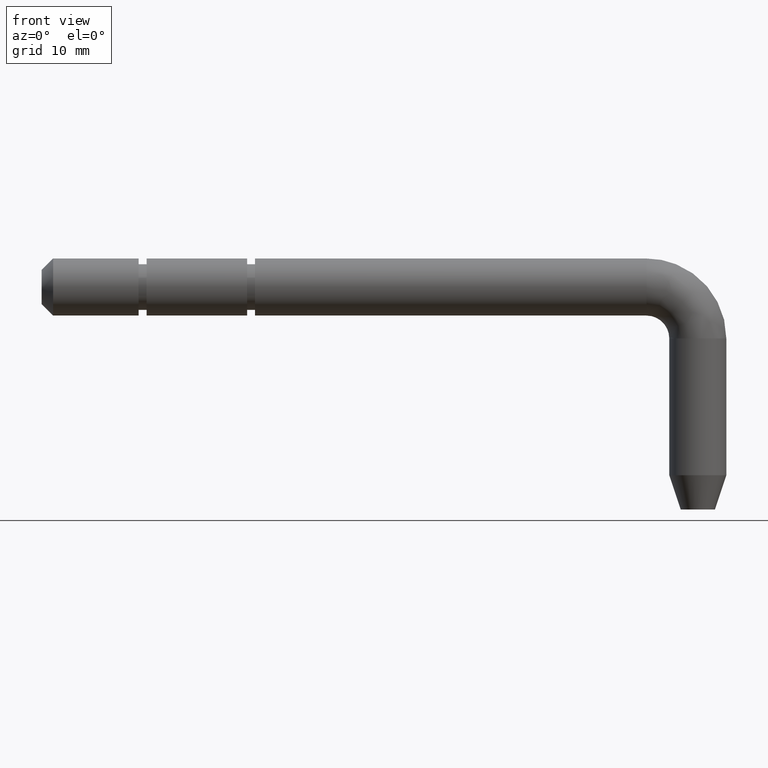
[diagram: clean part render]
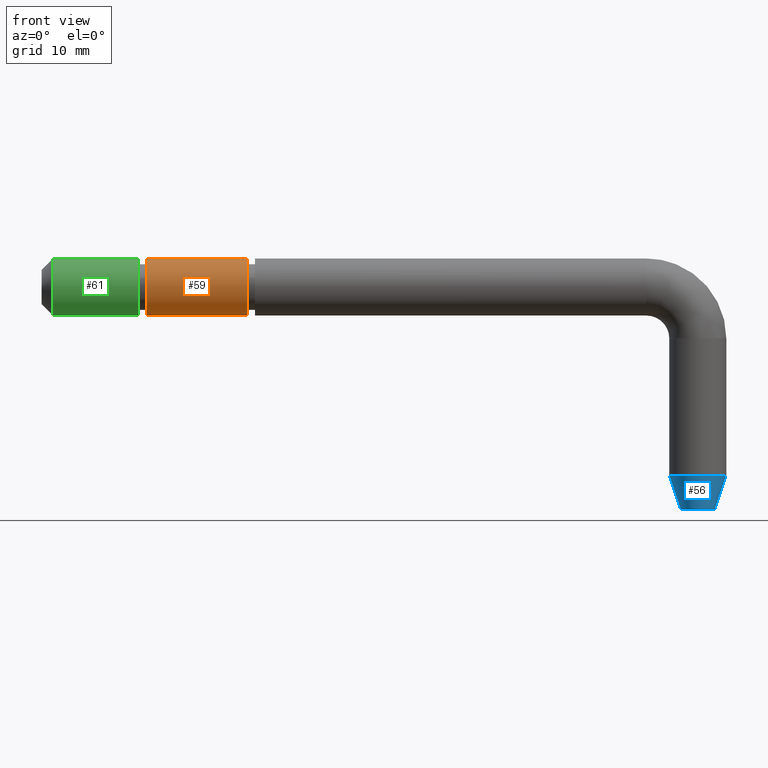
[diagram: same view with three faces highlighted in distinct colors, each labeled with its STEP entity id]
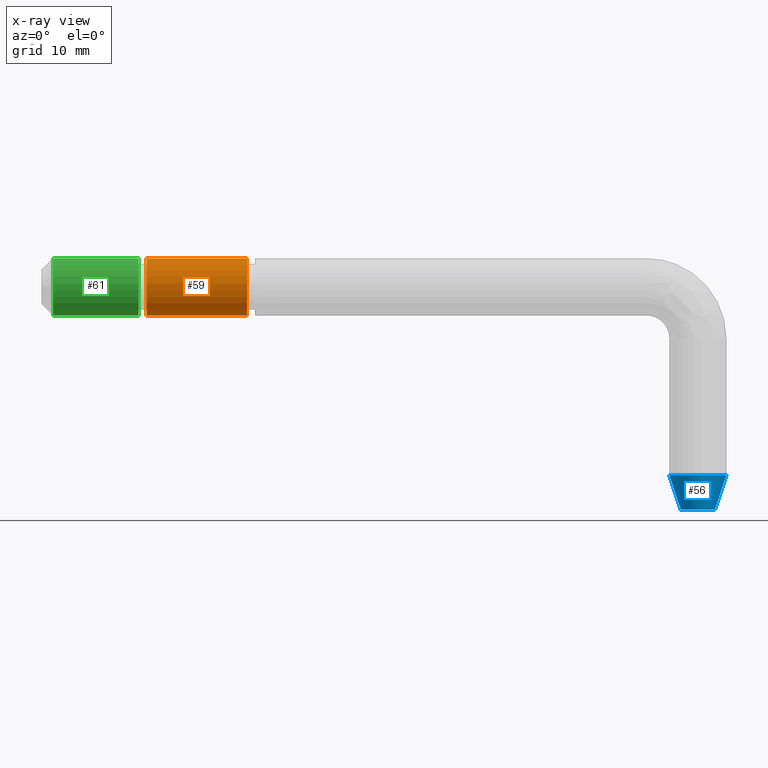
[diagram: x-ray of the same camera — body ghosted, the three highlighted faces saturated]
A machine part, front view with three faces highlighted in distinct colors.
The next image is the same camera in x-ray (body ghosted, the three faces saturated) — at least one of them is partly hidden behind the body in this view.
Their STEP definitions:

[orange] entity #59 — the highlighted cylindrical surface (edge-blend (fillet) strip) has radius 2.5 mm, axis along (1, 0, 0).
#59=ADVANCED_FACE('',(#259),#258,.T.);
#258=CYLINDRICAL_SURFACE('',#470,2.50000000000E+00);
#259=FACE_OUTER_BOUND('',#471,.T.);
#467=CARTESIAN_POINT('',(1.88800000000E+01,1.47949495899E-15,8.12194396524E-32));
#468=DIRECTION('',(1.00000000000E+00,2.51214793389E-16,1.53824696311E-32));
#469=DIRECTION('',(-1.33285938546E-31,5.91797983596E-16,-1.00000000000E+00));
#470=AXIS2_PLACEMENT_3D('',#467,#468,#469);
#471=EDGE_LOOP('',(#576,#577,#578,#579));
#576=ORIENTED_EDGE('',*,*,#617,.F.);
#577=ORIENTED_EDGE('',*,*,#634,.T.);
#578=ORIENTED_EDGE('',*,*,#605,.T.);
#579=ORIENTED_EDGE('',*,*,#635,.F.);
#605=EDGE_CURVE('',#699,#698,#706,.T.);
#617=EDGE_CURVE('',#783,#782,#790,.T.);
#634=EDGE_CURVE('',#783,#699,#896,.T.);
#635=EDGE_CURVE('',#782,#698,#902,.T.);
#698=VERTEX_POINT('',#987);
#699=VERTEX_POINT('',#988);
#706=CIRCLE('',#996,2.50000000000E+00);
#782=VERTEX_POINT('',#1047);
#783=VERTEX_POINT('',#1048);
#790=CIRCLE('',#1056,2.50000000000E+00);
#896=(BOUNDED_CURVE() B_SPLINE_CURVE(1,(#1105,#1106),.UNSPECIFIED.,.F.,.F.) B_SPLINE_CURVE_WITH_KNOTS((2,2),(8.33333343261E-02,9.16666664274E-01),.UNSPECIFIED.) CURVE() GEOMETRIC_REPRESENTATION_ITEM() RATIONAL_B_SPLINE_CURVE((1.00000000000E+00,1.00000000000E+00)) REPRESENTATION_ITEM('') );
#902=(BOUNDED_CURVE() B_SPLINE_CURVE(1,(#1107,#1108),.UNSPECIFIED.,.F.,.F.) B_SPLINE_CURVE_WITH_KNOTS((2,2),(8.33333333333E-02,9.16666666667E-01),.UNSPECIFIED.) CURVE() GEOMETRIC_REPRESENTATION_ITEM() RATIONAL_B_SPLINE_CURVE((7.50000000000E-01,7.50000000000E-01)) REPRESENTATION_ITEM('') );
#987=CARTESIAN_POINT('',(1.80000000000E+01,0.00000000000E+00,2.50000000000E+00));
#988=CARTESIAN_POINT('',(1.80000000000E+01,7.60343024859E-16,-2.50000000000E+00));
#993=CARTESIAN_POINT('',(1.80000000000E+01,1.53080849893E-16,0.00000000000E+00));
#994=DIRECTION('',(-1.00000000000E+00,0.00000000000E+00,0.00000000000E+00));
#995=DIRECTION('',(-0.00000000000E+00,1.20444234604E-16,-1.00000000000E+00));
#996=AXIS2_PLACEMENT_3D('',#993,#994,#995);
#1047=CARTESIAN_POINT('',(9.20000000000E+00,-6.12313288242E-16,2.50000000000E+00));
#1048=CARTESIAN_POINT('',(9.20000000000E+00,0.00000000000E+00,-2.50000000000E+00));
#1053=CARTESIAN_POINT('',(9.20000000000E+00,-1.53080849893E-16,0.00000000000E+00));
#1054=DIRECTION('',(-1.00000000000E+00,0.00000000000E+00,0.00000000000E+00));
#1055=DIRECTION('',(-0.00000000000E+00,-6.12323399574E-17,1.00000000000E+00));
#1056=AXIS2_PLACEMENT_3D('',#1053,#1054,#1055);
#1105=CARTESIAN_POINT('',(9.20000001048E+00,5.27230720603E-16,-2.50000000000E+00));
#1106=CARTESIAN_POINT('',(1.79999999747E+01,2.73792089345E-15,-2.50000000000E+00));
#1107=CARTESIAN_POINT('',(9.20000000000E+00,-2.73855012741E-15,2.50000000000E+00));
#1108=CARTESIAN_POINT('',(1.80000000000E+01,-5.18104078158E-16,2.50000000000E+00));

[blue] entity #56 — the highlighted face is a freeform B-spline surface patch.
#56=ADVANCED_FACE('',(#229),#228,.T.);
#228=( BOUNDED_SURFACE() B_SPLINE_SURFACE( 2,1,((#440,#441),(#442,#443),(#444,#445),(#446,#447),(#448,#449)), .UNSPECIFIED.,.F.,.F.,.F.) B_SPLINE_SURFACE_WITH_KNOTS((3,2,3),(2,2),(0.00000000000E+00,5.00000000000E-01,1.00000000000E+00),(0.00000000000E+00,1.00000000000E+00), .UNSPECIFIED. ) GEOMETRIC_REPRESENTATION_ITEM() RATIONAL_B_SPLINE_SURFACE(((1.00000000000E+00,1.00000000000E+00),(7.07106781187E-01,7.07106781187E-01),(1.00000000000E+00,1.00000000000E+00),(7.07106781187E-01,7.07106781187E-01),(1.00000000000E+00,1.00000000000E+00))) REPRESENTATION_ITEM('') SURFACE() );
#229=FACE_OUTER_BOUND('',#450,.T.);
#440=CARTESIAN_POINT('',(5.60000000000E+01,-5.06956387009E-15,-1.95000000000E+01));
#441=CARTESIAN_POINT('',(5.50000000000E+01,-3.42497724904E-15,-1.65000000000E+01));
#442=CARTESIAN_POINT('',(5.60000000000E+01,-1.50000000000E+00,-1.95000000000E+01));
#443=CARTESIAN_POINT('',(5.50000000000E+01,-2.50000000000E+00,-1.65000000000E+01));
#444=CARTESIAN_POINT('',(5.75000000000E+01,-1.50000000000E+00,-1.95000000000E+01));
#445=CARTESIAN_POINT('',(5.75000000000E+01,-2.50000000000E+00,-1.65000000000E+01));
#446=CARTESIAN_POINT('',(5.90000000000E+01,-1.50000000000E+00,-1.95000000000E+01));
#447=CARTESIAN_POINT('',(6.00000000000E+01,-2.50000000000E+00,-1.65000000000E+01));
#448=CARTESIAN_POINT('',(5.90000000000E+01,1.11764494938E-15,-1.95000000000E+01));
#449=CARTESIAN_POINT('',(6.00000000000E+01,6.88703745009E-15,-1.65000000000E+01));
#450=EDGE_LOOP('',(#564,#565,#566,#567));
#564=ORIENTED_EDGE('',*,*,#629,.T.);
#565=ORIENTED_EDGE('',*,*,#632,.F.);
#566=ORIENTED_EDGE('',*,*,#615,.F.);
#567=ORIENTED_EDGE('',*,*,#633,.T.);
#615=EDGE_CURVE('',#769,#768,#776,.T.);
#629=EDGE_CURVE('',#847,#846,#866,.T.);
#632=EDGE_CURVE('',#768,#846,#884,.T.);
#633=EDGE_CURVE('',#769,#847,#890,.T.);
#768=VERTEX_POINT('',#1037);
#769=VERTEX_POINT('',#1038);
#776=CIRCLE('',#1046,1.50000000000E+00);
#846=VERTEX_POINT('',#1083);
#847=VERTEX_POINT('',#1084);
#866=CIRCLE('',#1096,2.50000000000E+00);
#884=(BOUNDED_CURVE() B_SPLINE_CURVE(1,(#1101,#1102),.UNSPECIFIED.,.F.,.F.) B_SPLINE_CURVE_WITH_KNOTS((2,2),(0.00000000000E+00,1.00000000000E+00),.UNSPECIFIED.) CURVE() GEOMETRIC_REPRESENTATION_ITEM() RATIONAL_B_SPLINE_CURVE((1.00000000000E+00,1.00000000000E+00)) REPRESENTATION_ITEM('') );
#890=(BOUNDED_CURVE() B_SPLINE_CURVE(1,(#1103,#1104),.UNSPECIFIED.,.F.,.F.) B_SPLINE_CURVE_WITH_KNOTS((2,2),(0.00000000000E+00,1.00000000000E+00),.UNSPECIFIED.) CURVE() GEOMETRIC_REPRESENTATION_ITEM() RATIONAL_B_SPLINE_CURVE((7.50000000000E-01,7.50000000000E-01)) REPRESENTATION_ITEM('') );
#1037=CARTESIAN_POINT('',(5.60000000000E+01,-3.67387972945E-16,-1.95000000000E+01));
#1038=CARTESIAN_POINT('',(5.90000000000E+01,-1.48029736617E-16,-1.95000000000E+01));
#1043=CARTESIAN_POINT('',(5.75000000000E+01,-9.18485099361E-17,-1.95000000000E+01));
#1044=DIRECTION('',(-5.12748987705E-32,8.37382644631E-16,-1.00000000000E+00));
#1045=DIRECTION('',(-1.00000000000E+00,-6.12323399574E-17,-0.00000000000E+00));
#1046=AXIS2_PLACEMENT_3D('',#1043,#1044,#1045);
#1083=CARTESIAN_POINT('',(5.50000000000E+01,0.00000000000E+00,-1.65000000000E+01));
#1084=CARTESIAN_POINT('',(6.00000000000E+01,7.60343024859E-16,-1.65000000000E+01));
#1093=CARTESIAN_POINT('',(5.75000000000E+01,1.53080849893E-16,-1.65000000000E+01));
#1094=DIRECTION('',(6.05147470221E-32,-5.02429586779E-16,-1.00000000000E+00));
#1095=DIRECTION('',(1.00000000000E+00,1.20444234604E-16,-0.00000000000E+00));
#1096=AXIS2_PLACEMENT_3D('',#1093,#1094,#1095);
#1101=CARTESIAN_POINT('',(5.60000000000E+01,-5.06956387009E-15,-1.95000000000E+01));
#1102=CARTESIAN_POINT('',(5.50000000000E+01,-3.42497724904E-15,-1.65000000000E+01));
#1103=CARTESIAN_POINT('',(5.90000000000E+01,1.48029736617E-15,-1.95000000000E+01));
#1104=CARTESIAN_POINT('',(6.00000000000E+01,7.54951656745E-15,-1.65000000000E+01));

[green] entity #61 — the highlighted cylindrical surface (edge-blend (fillet) strip) has radius 2.5 mm, axis along (1, -0, -0).
#61=ADVANCED_FACE('',(#279),#278,.T.);
#278=CYLINDRICAL_SURFACE('',#480,2.50000000000E+00);
#279=FACE_OUTER_BOUND('',#481,.T.);
#477=CARTESIAN_POINT('',(9.25000000000E+00,-9.77385720359E-16,-6.92211133401E-32));
#478=DIRECTION('',(1.00000000000E+00,-2.51214793389E-16,-1.53824696311E-32));
#479=DIRECTION('',(-1.13595970352E-31,-3.90954288144E-16,-1.00000000000E+00));
#480=AXIS2_PLACEMENT_3D('',#477,#478,#479);
#481=EDGE_LOOP('',(#584,#585,#586,#587));
#584=ORIENTED_EDGE('',*,*,#639,.F.);
#585=ORIENTED_EDGE('',*,*,#636,.T.);
#586=ORIENTED_EDGE('',*,*,#608,.T.);
#587=ORIENTED_EDGE('',*,*,#638,.F.);
#608=EDGE_CURVE('',#726,#727,#728,.T.);
#636=EDGE_CURVE('',#908,#726,#909,.T.);
#638=EDGE_CURVE('',#915,#727,#922,.T.);
#639=EDGE_CURVE('',#908,#915,#928,.T.);
#726=VERTEX_POINT('',#1007);
#727=VERTEX_POINT('',#1008);
#728=CIRCLE('',#1012,2.50000000000E+00);
#908=VERTEX_POINT('',#1109);
#909=(BOUNDED_CURVE() B_SPLINE_CURVE(1,(#1110,#1111),.UNSPECIFIED.,.F.,.F.) B_SPLINE_CURVE_WITH_KNOTS((2,2),(8.33333366442E-02,9.16666667899E-01),.UNSPECIFIED.) CURVE() GEOMETRIC_REPRESENTATION_ITEM() RATIONAL_B_SPLINE_CURVE((1.00000000000E+00,1.00000000000E+00)) REPRESENTATION_ITEM('') );
#915=VERTEX_POINT('',#1112);
#922=(BOUNDED_CURVE() B_SPLINE_CURVE(1,(#1117,#1118),.UNSPECIFIED.,.F.,.F.) B_SPLINE_CURVE_WITH_KNOTS((2,2),(8.33333333333E-02,9.16666666667E-01),.UNSPECIFIED.) CURVE() GEOMETRIC_REPRESENTATION_ITEM() RATIONAL_B_SPLINE_CURVE((7.50000000000E-01,7.50000000000E-01)) REPRESENTATION_ITEM('') );
#928=CIRCLE('',#1122,2.50000000000E+00);
#1007=CARTESIAN_POINT('',(8.50000000000E+00,5.92118946467E-16,-2.50000000000E+00));
#1008=CARTESIAN_POINT('',(8.50000000000E+00,-1.48029736617E-16,2.50000000000E+00));
#1009=CARTESIAN_POINT('',(8.50000000000E+00,1.53080849893E-16,0.00000000000E+00));
#1010=DIRECTION('',(-1.00000000000E+00,0.00000000000E+00,0.00000000000E+00));
#1011=DIRECTION('',(0.00000000000E+00,-2.42904869986E-16,1.00000000000E+00));
#1012=AXIS2_PLACEMENT_3D('',#1009,#1010,#1011);
#1109=CARTESIAN_POINT('',(1.00000000000E+00,9.18464876698E-16,-2.50000000000E+00));
#1110=CARTESIAN_POINT('',(1.00000002980E+00,1.17750597259E-16,-2.50000000000E+00));
#1111=CARTESIAN_POINT('',(8.50000001109E+00,-1.76636034846E-15,-2.50000000000E+00));
#1112=CARTESIAN_POINT('',(1.00000000000E+00,-4.44089209850E-16,2.50000000000E+00));
#1117=CARTESIAN_POINT('',(1.00000000000E+00,2.03540887848E-15,2.50000000000E+00));
#1118=CARTESIAN_POINT('',(8.50000000000E+00,1.85037170771E-16,2.50000000000E+00));
#1119=CARTESIAN_POINT('',(1.00000000000E+00,1.53080849893E-16,0.00000000000E+00));
#1120=DIRECTION('',(-1.00000000000E+00,0.00000000000E+00,0.00000000000E+00));
#1121=DIRECTION('',(-0.00000000000E+00,1.83692975340E-16,-1.00000000000E+00));
#1122=AXIS2_PLACEMENT_3D('',#1119,#1120,#1121);